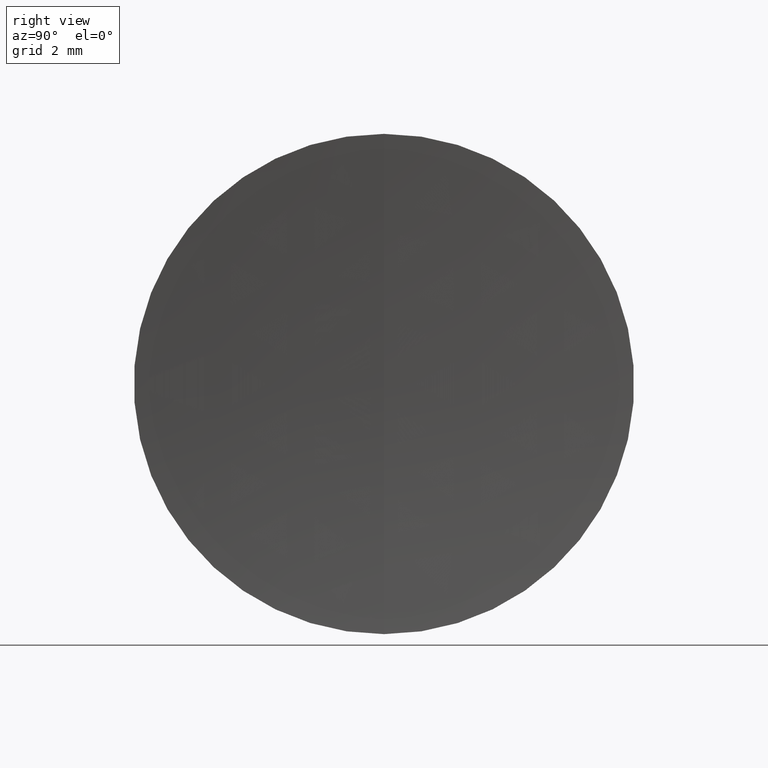
[diagram: clean part render]
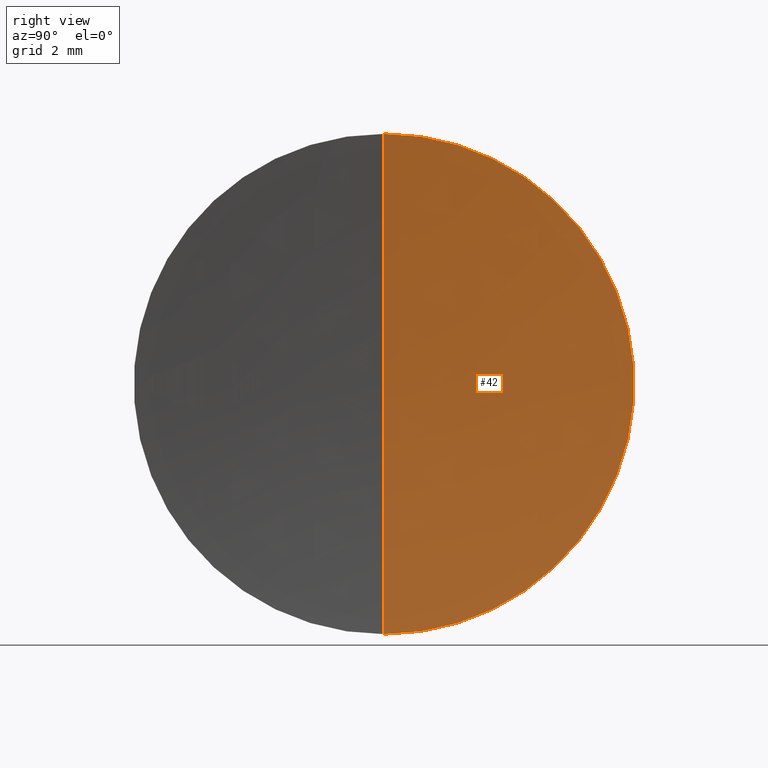
[diagram: same view with one face highlighted and labeled with its STEP entity id]
A machine part, right view. The second image highlights one B-rep face of the part: STEP entity #42.
In plain terms, the highlighted spherical surface has radius 66.68 mm.
Its self-contained STEP definition (entity closure, byte-faithful):
#18 = ORIENTED_EDGE ( 'NONE', *, *, #275, .T. ) ;
#38 = CARTESIAN_POINT ( 'NONE',  ( 41.12501739380486000, 0.0000000000000000000, -6.350000000000002300 ) ) ;
#39 = DIRECTION ( 'NONE',  ( 0.0000000000000000000, 0.0000000000000000000, 1.000000000000000000 ) ) ;
#42 = ADVANCED_FACE ( 'NONE', ( #251 ), #265, .F. ) ;
#43 = VERTEX_POINT ( 'NONE', #173 ) ;
#49 = EDGE_CURVE ( 'NONE', #43, #50, #64, .T. ) ;
#50 = VERTEX_POINT ( 'NONE', #38 ) ;
#64 = CIRCLE ( 'NONE', #219, 6.349999999999976600 ) ;
#66 = DIRECTION ( 'NONE',  ( -1.000000000000000000, -0.0000000000000000000, -0.0000000000000000000 ) ) ;
#77 = CIRCLE ( 'NONE', #212, 66.68000000000000700 ) ;
#79 = VERTEX_POINT ( 'NONE', #284 ) ;
#82 = DIRECTION ( 'NONE',  ( 0.0000000000000000000, 1.000000000000000000, -0.0000000000000000000 ) ) ;
#95 = AXIS2_PLACEMENT_3D ( 'NONE', #209, #204, #335 ) ;
#97 = DIRECTION ( 'NONE',  ( 0.0000000000000000000, 0.0000000000000000000, -1.000000000000000000 ) ) ;
#105 = CIRCLE ( 'NONE', #95, 66.68000000000000700 ) ;
#116 = ORIENTED_EDGE ( 'NONE', *, *, #49, .F. ) ;
#134 = ORIENTED_EDGE ( 'NONE', *, *, #343, .F. ) ;
#167 = EDGE_LOOP ( 'NONE', ( #116, #18, #134 ) ) ;
#173 = CARTESIAN_POINT ( 'NONE',  ( 41.12501739380486000, -7.776507174585695100E-016, 6.350000000000002300 ) ) ;
#176 = AXIS2_PLACEMENT_3D ( 'NONE', #337, #199, #97 ) ;
#199 = DIRECTION ( 'NONE',  ( -0.0000000000000000000, -1.000000000000000000, -0.0000000000000000000 ) ) ;
#204 = DIRECTION ( 'NONE',  ( 0.0000000000000000000, -1.000000000000000000, -1.224646799147353200E-016 ) ) ;
#209 = CARTESIAN_POINT ( 'NONE',  ( 107.5019704724149100, 0.0000000000000000000, 0.0000000000000000000 ) ) ;
#212 = AXIS2_PLACEMENT_3D ( 'NONE', #269, #82, #322 ) ;
#219 = AXIS2_PLACEMENT_3D ( 'NONE', #226, #66, #39 ) ;
#226 = CARTESIAN_POINT ( 'NONE',  ( 41.12501739380485300, 0.0000000000000000000, 0.0000000000000000000 ) ) ;
#251 = FACE_OUTER_BOUND ( 'NONE', #167, .T. ) ;
#265 = SPHERICAL_SURFACE ( 'NONE', #176, 66.68000000000000700 ) ;
#269 = CARTESIAN_POINT ( 'NONE',  ( 107.5019704724149100, 0.0000000000000000000, 0.0000000000000000000 ) ) ;
#275 = EDGE_CURVE ( 'NONE', #43, #79, #105, .T. ) ;
#284 = CARTESIAN_POINT ( 'NONE',  ( 40.82197047241491100, 0.0000000000000000000, -4.082972428357275800E-015 ) ) ;
#322 = DIRECTION ( 'NONE',  ( 0.0000000000000000000, 0.0000000000000000000, 1.000000000000000000 ) ) ;
#335 = DIRECTION ( 'NONE',  ( 0.0000000000000000000, 1.224646799147353200E-016, -1.000000000000000000 ) ) ;
#337 = CARTESIAN_POINT ( 'NONE',  ( 107.5019704724149100, 0.0000000000000000000, 0.0000000000000000000 ) ) ;
#343 = EDGE_CURVE ( 'NONE', #50, #79, #77, .T. ) ;